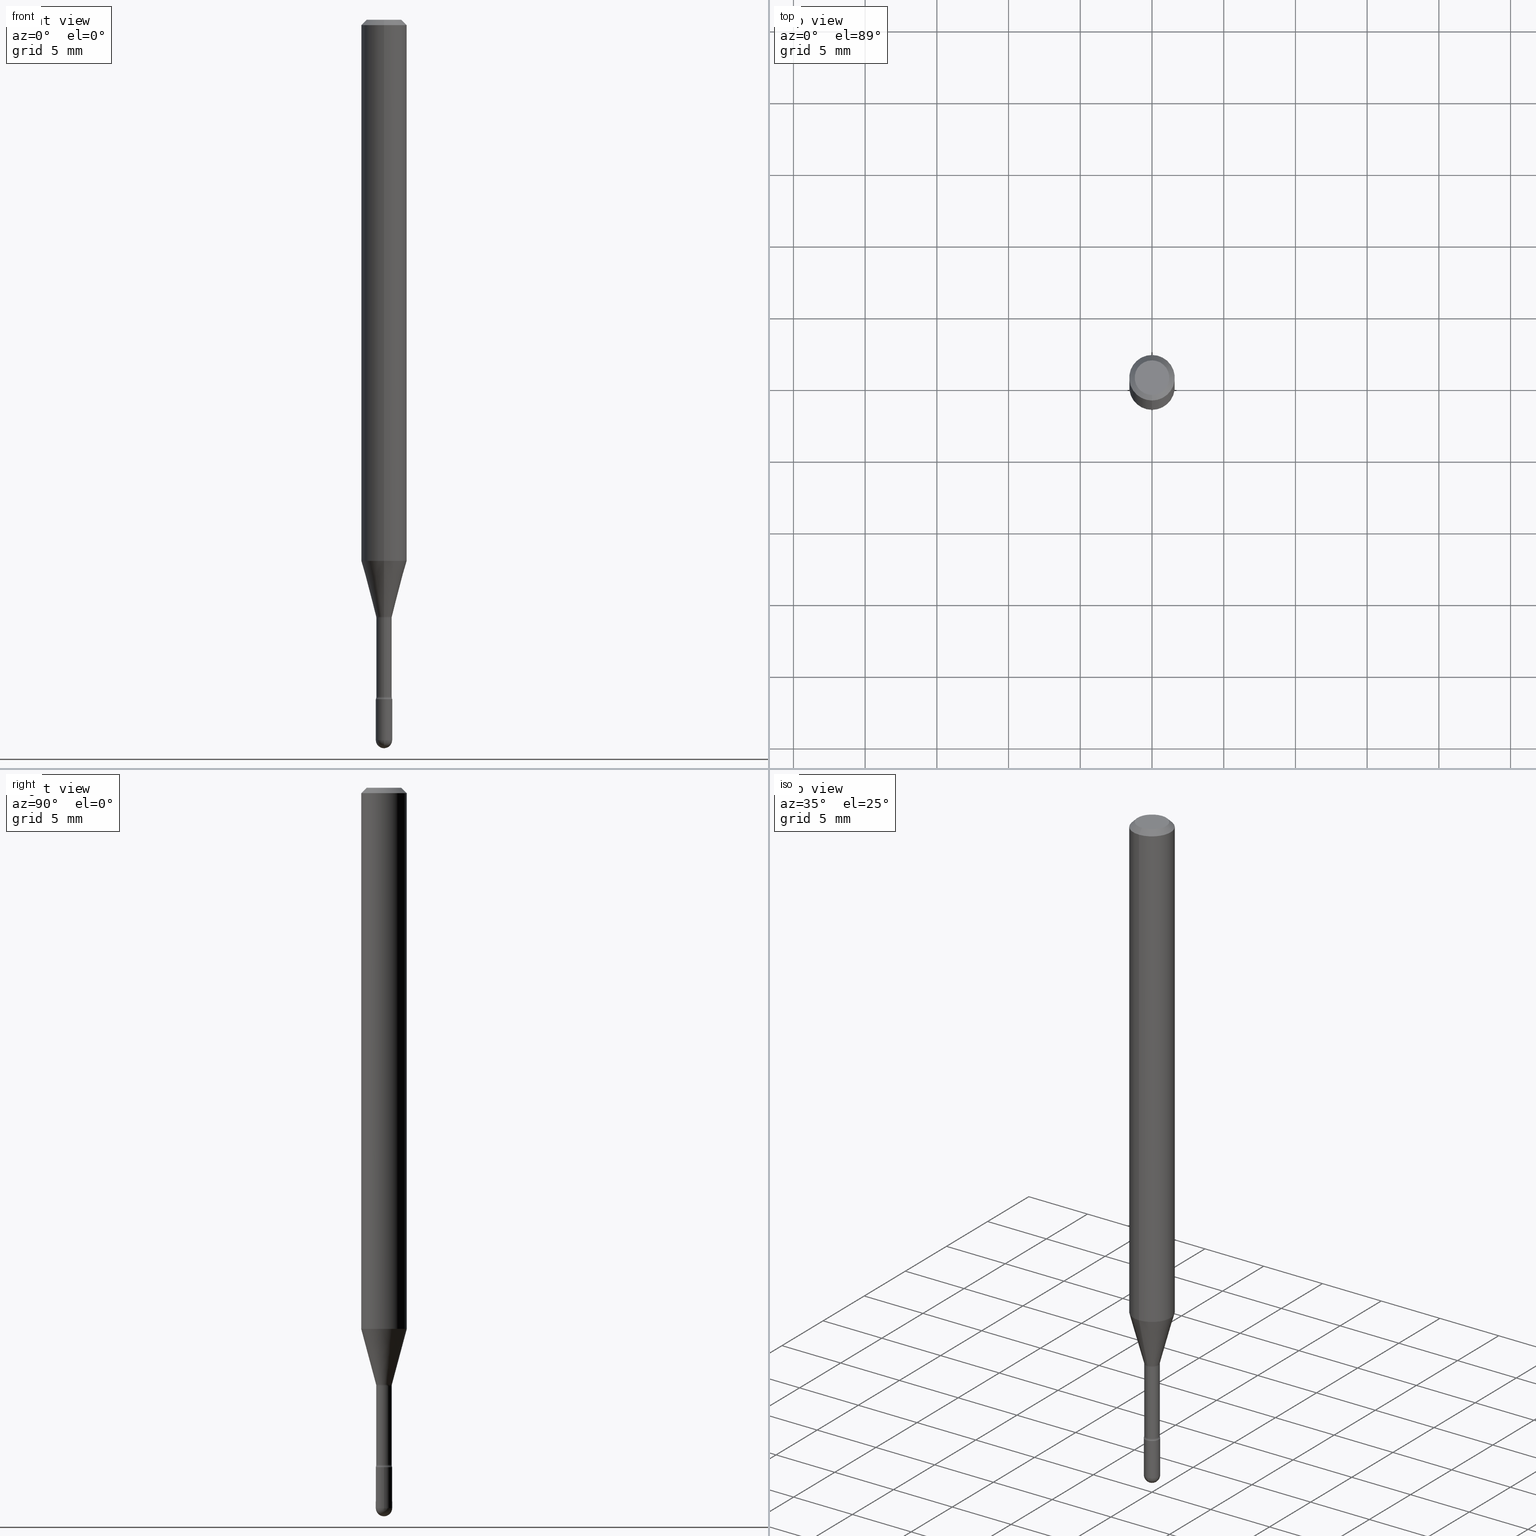
[diagram: canonical four-view strip — front | top / right | iso, engineering-drawing reading convention]
A machine part, canonical four-view strip (front | top / right | iso — engineering-drawing reading convention). The complete STEP part file that produces these views, byte-faithful:
ISO-10303-21;
HEADER;
FILE_DESCRIPTION (( 'STEP AP203' ),
    '1' );
FILE_NAME ('04546.STEP',
    '2024-04-09T21:48:30',
    ( '' ),
    ( '' ),
    'SwSTEP 2.0',
    'SolidWorks 2023',
    '' );
FILE_SCHEMA (( 'CONFIG_CONTROL_DESIGN' ));
ENDSEC;

DATA;
#1 = EDGE_CURVE ( 'NONE', #250, #234, #373, .T. ) ;
#2 = PERSON_AND_ORGANIZATION_ROLE ( 'classification_officer' ) ;
#3 = ORIENTED_EDGE ( 'NONE', *, *, #483, .F. ) ;
#4 = ORIENTED_EDGE ( 'NONE', *, *, #302, .F. ) ;
#5 = AXIS2_PLACEMENT_3D ( 'NONE', #416, #22, #192 ) ;
#6 = DIRECTION ( 'NONE',  ( -2.445440132867117626E-29, 3.491522400666532586E-15, 1.000000000000000000 ) ) ;
#7 = ADVANCED_FACE ( 'NONE', ( #532 ), #151, .F. ) ;
#8 = EDGE_CURVE ( 'NONE', #200, #158, #526, .T. ) ;
#9 = VERTEX_POINT ( 'NONE', #175 ) ;
#10 = DIRECTION ( 'NONE',  ( -1.000000000000000000, 6.982962677686265922E-15, -4.883557194083112340E-29 ) ) ;
#11 = DIRECTION ( 'NONE',  ( 6.982962677686265922E-15, 1.000000000000000000, 0.000000000000000000 ) ) ;
#12 = CIRCLE ( 'NONE', #62, 0.02249999999999999917 ) ;
#13 = CIRCLE ( 'NONE', #298, 0.02250000000000005121 ) ;
#14 = DIRECTION ( 'NONE',  ( -6.982962677686265922E-15, -1.000000000000000000, 3.483106191921935554E-15 ) ) ;
#15 = ORIENTED_EDGE ( 'NONE', *, *, #201, .T. ) ;
#16 = CARTESIAN_POINT ( 'NONE',  ( 4.015351042419959195E-29, -5.732991751759567442E-15, -1.641974787463811314 ) ) ;
#17 = AXIS2_PLACEMENT_3D ( 'NONE', #16, #480, #225 ) ;
#18 = CIRCLE ( 'NONE', #189, 0.02114999999999999172 ) ;
#19 = VERTEX_POINT ( 'NONE', #309 ) ;
#20 = CC_DESIGN_PERSON_AND_ORGANIZATION_ASSIGNMENT ( #319, #414, ( #281 ) ) ;
#21 = EDGE_LOOP ( 'NONE', ( #277, #61, #71, #522 ) ) ;
#22 = DIRECTION ( 'NONE',  ( -2.445440132867117346E-29, 3.491522400666532980E-15, 1.000000000000000000 ) ) ;
#23 = EDGE_LOOP ( 'NONE', ( #537, #4, #66, #435 ) ) ;
#24 = DIRECTION ( 'NONE',  ( -6.982962677686265922E-15, -1.000000000000000000, 3.491522400666532980E-15 ) ) ;
#25 = ORIENTED_EDGE ( 'NONE', *, *, #69, .F. ) ;
#26 = CIRCLE ( 'NONE', #196, 0.02249999999999999570 ) ;
#27 = AXIS2_PLACEMENT_3D ( 'NONE', #544, #148, #405 ) ;
#28 = FACE_OUTER_BOUND ( 'NONE', #82, .T. ) ;
#29 = EDGE_CURVE ( 'NONE', #131, #218, #127, .T. ) ;
#30 = LINE ( 'NONE', #464, #324 ) ;
#31 = PERSON_AND_ORGANIZATION ( #389, #397 ) ;
#32 = ORIENTED_EDGE ( 'NONE', *, *, #8, .T. ) ;
#33 = DIRECTION ( 'NONE',  ( 1.000000000000000000, -6.982962677686269866E-15, 0.000000000000000000 ) ) ;
#34 = DIMENSIONAL_EXPONENTS ( 1.000000000000000000, 0.000000000000000000, 0.000000000000000000, 0.000000000000000000, 0.000000000000000000, 0.000000000000000000, 0.000000000000000000 ) ;
#35 = APPROVAL_ROLE ( '' ) ;
#36 = ORIENTED_EDGE ( 'NONE', *, *, #223, .T. ) ;
#37 = CARTESIAN_POINT ( 'NONE',  ( 0.02249999999999999570, -6.865125182500334547E-15, -1.977499999999999813 ) ) ;
#38 = DATE_TIME_ROLE ( 'classification_date' ) ;
#39 = EDGE_LOOP ( 'NONE', ( #211, #168, #157, #501, #64 ) ) ;
#40 = AXIS2_PLACEMENT_3D ( 'NONE', #313, #396, #482 ) ;
#41 = AXIS2_PLACEMENT_3D ( 'NONE', #96, #147, #229 ) ;
#42 = CARTESIAN_POINT ( 'NONE',  ( 4.835914564231107217E-29, -6.904404347562320349E-15, -1.977499999999999813 ) ) ;
#43 = DATE_AND_TIME ( #344, #307 ) ;
#44 = ORIENTED_EDGE ( 'NONE', *, *, #129, .T. ) ;
#45 = ADVANCED_FACE ( 'NONE', ( #136 ), #449, .T. ) ;
#46 = ORIENTED_EDGE ( 'NONE', *, *, #420, .F. ) ;
#47 = EDGE_CURVE ( 'NONE', #216, #114, #304, .T. ) ;
#48 = DIRECTION ( 'NONE',  ( -6.982962677686265922E-15, -1.000000000000000000, 3.491522400666532980E-15 ) ) ;
#49 = CARTESIAN_POINT ( 'NONE',  ( 4.835914564231107217E-29, -6.904404347562320349E-15, -1.977499999999999813 ) ) ;
#50 = CIRCLE ( 'NONE', #437, 0.02166111260566391111 ) ;
#51 = CARTESIAN_POINT ( 'NONE',  ( -1.476896606330192412E-16, -0.02115000000000651428, -1.858780876267511539 ) ) ;
#52 = ORIENTED_EDGE ( 'NONE', *, *, #204, .T. ) ;
#53 = DIRECTION ( 'NONE',  ( -1.000000000000000000, 6.982962677686265922E-15, -4.883557194083111780E-29 ) ) ;
#54 = DIRECTION ( 'NONE',  ( -2.445440132867117346E-29, 3.491522400666532980E-15, 1.000000000000000000 ) ) ;
#55 = AXIS2_PLACEMENT_3D ( 'NONE', #60, #104, #408 ) ;
#56 = AXIS2_PLACEMENT_3D ( 'NONE', #455, #566, #341 ) ;
#57 = APPROVAL ( #100, 'UNSPECIFIED' ) ;
#58 = LINE ( 'NONE', #404, #438 ) ;
#59 = APPLICATION_PROTOCOL_DEFINITION ( 'international standard', 'config_control_design', 1994, #400 ) ;
#60 = CARTESIAN_POINT ( 'NONE',  ( 3.633140760782267063E-29, -5.187283949647700469E-15, -1.485679699107027130 ) ) ;
#61 = ORIENTED_EDGE ( 'NONE', *, *, #294, .T. ) ;
#62 = AXIS2_PLACEMENT_3D ( 'NONE', #288, #380, #329 ) ;
#63 = CONICAL_SURFACE ( 'NONE', #255, 0.06250000000000000000, 0.7853981633974483900 ) ;
#64 = ORIENTED_EDGE ( 'NONE', *, *, #494, .F. ) ;
#65 = CYLINDRICAL_SURFACE ( 'NONE', #5, 0.02115000000000000907 ) ;
#66 = ORIENTED_EDGE ( 'NONE', *, *, #394, .T. ) ;
#67 = CYLINDRICAL_SURFACE ( 'NONE', #128, 0.02249999999999999917 ) ;
#68 = ORIENTED_EDGE ( 'NONE', *, *, #219, .F. ) ;
#69 = EDGE_CURVE ( 'NONE', #114, #565, #471, .T. ) ;
#70 = FACE_OUTER_BOUND ( 'NONE', #23, .T. ) ;
#71 = ORIENTED_EDGE ( 'NONE', *, *, #327, .T. ) ;
#72 = AXIS2_PLACEMENT_3D ( 'NONE', #310, #479, #160 ) ;
#73 = DIRECTION ( 'NONE',  ( -2.445468806185136597E-29, 3.491481338843145583E-15, 1.000000000000000000 ) ) ;
#74 = DIRECTION ( 'NONE',  ( 7.105427357601001859E-15, 1.000000000000000000, 0.000000000000000000 ) ) ;
#75 = ORIENTED_EDGE ( 'NONE', *, *, #303, .F. ) ;
#76 = DIRECTION ( 'NONE',  ( -1.000000000000000000, 7.105427357601001070E-15, -4.926315508542082329E-29 ) ) ;
#77 = DIRECTION ( 'NONE',  ( -6.982962677686265922E-15, -1.000000000000000000, 3.491522400666532980E-15 ) ) ;
#78 = EDGE_LOOP ( 'NONE', ( #497, #432, #297, #454 ) ) ;
#79 = DIRECTION ( 'NONE',  ( 1.000000000000000000, -6.982962677686265922E-15, 4.883557194083112340E-29 ) ) ;
#80 = DIRECTION ( 'NONE',  ( -2.445440132867117626E-29, 3.491522400666532586E-15, 1.000000000000000000 ) ) ;
#81 = ADVANCED_FACE ( 'NONE', ( #358 ), #529, .T. ) ;
#82 = EDGE_LOOP ( 'NONE', ( #46, #393 ) ) ;
#83 = TOROIDAL_SURFACE ( 'NONE', #242, 0.03614999999999999464, 0.01500000000000001679 ) ;
#84 = TOROIDAL_SURFACE ( 'NONE', #41, 0.03615000000000002239, 0.01499999999999999424 ) ;
#85 = DIRECTION ( 'NONE',  ( -2.445440132867117346E-29, 3.491522400666532980E-15, 1.000000000000000000 ) ) ;
#86 = PERSON_AND_ORGANIZATION_ROLE ( 'creator' ) ;
#87 = VERTEX_POINT ( 'NONE', #360 ) ;
#88 = VERTEX_POINT ( 'NONE', #367 ) ;
#89 = EDGE_CURVE ( 'NONE', #378, #9, #171, .T. ) ;
#90 =( NAMED_UNIT ( * ) PLANE_ANGLE_UNIT ( ) SI_UNIT ( $, .RADIAN. ) );
#91 = AXIS2_PLACEMENT_3D ( 'NONE', #93, #54, #14 ) ;
#92 = AXIS2_PLACEMENT_3D ( 'NONE', #511, #376, #421 ) ;
#93 = CARTESIAN_POINT ( 'NONE',  ( 3.668160199300696128E-31, -5.237283600999828510E-17, -0.01500000000000008271 ) ) ;
#94 = DIRECTION ( 'NONE',  ( -6.982962677686265922E-15, -1.000000000000000000, 0.000000000000000000 ) ) ;
#95 = CARTESIAN_POINT ( 'NONE',  ( 4.560799323535279574E-29, -6.511612696942466269E-15, -1.864999999999999991 ) ) ;
#96 = CARTESIAN_POINT ( 'NONE',  ( 4.545590650445673704E-29, -6.489898742486526882E-15, -1.858780876267511539 ) ) ;
#97 = CARTESIAN_POINT ( 'NONE',  ( -4.364351673553912750E-16, -0.06250000000000005551, -0.01499999999999986587 ) ) ;
#98 = TOROIDAL_SURFACE ( 'NONE', #220, 0.03614999999999999464, 0.01500000000000001679 ) ;
#99 = CARTESIAN_POINT ( 'NONE',  ( -0.02249999999999999570, -6.548136406706371414E-15, -1.977499999999999813 ) ) ;
#100 = APPROVAL_STATUS ( 'not_yet_approved' ) ;
#101 = EDGE_CURVE ( 'NONE', #216, #244, #314, .T. ) ;
#102 = EDGE_LOOP ( 'NONE', ( #205, #36, #248, #162 ) ) ;
#103 = DIRECTION ( 'NONE',  ( -2.445440132867117346E-29, 3.491522400666532980E-15, 1.000000000000000000 ) ) ;
#104 = DIRECTION ( 'NONE',  ( -2.445440132867117346E-29, 3.491522400666532980E-15, 1.000000000000000000 ) ) ;
#105 = AXIS2_PLACEMENT_3D ( 'NONE', #95, #266, #180 ) ;
#106 = AXIS2_PLACEMENT_3D ( 'NONE', #194, #291, #245 ) ;
#107 = DIRECTION ( 'NONE',  ( -2.445440132867117346E-29, 3.491522400666532586E-15, 1.000000000000000000 ) ) ;
#108 = DIRECTION ( 'NONE',  ( 2.445440132867117346E-29, -3.491522400666532586E-15, -1.000000000000000000 ) ) ;
#109 = DIRECTION ( 'NONE',  ( -4.851104656540964275E-15, -0.7071067811865500152, -0.7071067811865450192 ) ) ;
#110 = EDGE_LOOP ( 'NONE', ( #555, #428, #300, #448 ) ) ;
#111 = DIRECTION ( 'NONE',  ( -7.105427357600999492E-15, -1.000000000000000000, 0.000000000000000000 ) ) ;
#112 = DIRECTION ( 'NONE',  ( -2.445468806185136877E-29, 3.491481338843145188E-15, 1.000000000000000000 ) ) ;
#113 = PERSON_AND_ORGANIZATION ( #389, #397 ) ;
#114 = VERTEX_POINT ( 'NONE', #97 ) ;
#115 = AXIS2_PLACEMENT_3D ( 'NONE', #164, #425, #74 ) ;
#116 = CIRCLE ( 'NONE', #56, 0.02249999999999999917 ) ;
#117 = CARTESIAN_POINT ( 'NONE',  ( 4.005857145219299164E-29, -5.719436664354149632E-15, -1.638092501787273614 ) ) ;
#118 = LINE ( 'NONE', #207, #458 ) ;
#119 = VERTEX_POINT ( 'NONE', #271 ) ;
#120 = DIRECTION ( 'NONE',  ( -6.982962677686265922E-15, -1.000000000000000000, 0.000000000000000000 ) ) ;
#121 = EDGE_CURVE ( 'NONE', #244, #216, #209, .T. ) ;
#122 = CARTESIAN_POINT ( 'NONE',  ( -4.364351673553553818E-16, -0.06250000000000520417, -1.485679699107026686 ) ) ;
#123 = VERTEX_POINT ( 'NONE', #183 ) ;
#124 = DIRECTION ( 'NONE',  ( -2.445440132867117346E-29, 3.491522400666532980E-15, 1.000000000000000000 ) ) ;
#125 = CALENDAR_DATE ( 2024, 9, 4 ) ;
#126 = ORIENTED_EDGE ( 'NONE', *, *, #201, .F. ) ;
#127 = CIRCLE ( 'NONE', #105, 0.02249999999999999917 ) ;
#128 = AXIS2_PLACEMENT_3D ( 'NONE', #551, #73, #560 ) ;
#129 = EDGE_CURVE ( 'NONE', #369, #218, #363, .T. ) ;
#130 = PERSON_AND_ORGANIZATION_ROLE ( 'design_supplier' ) ;
#131 = VERTEX_POINT ( 'NONE', #430 ) ;
#132 = FACE_OUTER_BOUND ( 'NONE', #340, .T. ) ;
#133 = CLOSED_SHELL ( 'NONE', ( #490, #264, #81, #241, #361 ) ) ;
#134 = CC_DESIGN_APPROVAL ( #184, ( #285 ) ) ;
#135 = ADVANCED_FACE ( 'NONE', ( #384 ), #336, .T. ) ;
#136 = FACE_OUTER_BOUND ( 'NONE', #21, .T. ) ;
#137 = CARTESIAN_POINT ( 'NONE',  ( 4.560745847797173249E-29, -6.511689277243084217E-15, -1.864999999999999991 ) ) ;
#138 = DIRECTION ( 'NONE',  ( -2.445440132867117346E-29, 3.491522400666532980E-15, 1.000000000000000000 ) ) ;
#139 = ADVANCED_FACE ( 'NONE', ( #247 ), #166, .T. ) ;
#140 = MANIFOLD_SOLID_BREP ( 'Body-Move/Copy2[2]', #267 ) ;
#141 = EDGE_CURVE ( 'NONE', #19, #423, #492, .T. ) ;
#142 = PERSON_AND_ORGANIZATION ( #389, #397 ) ;
#143 = EDGE_CURVE ( 'NONE', #123, #119, #403, .T. ) ;
#144 = PRODUCT_DEFINITION_SHAPE ( 'NONE', 'NONE',  #281 ) ;
#145 = DATE_AND_TIME ( #368, #431 ) ;
#146 = EDGE_LOOP ( 'NONE', ( #231, #153, #25, #415 ) ) ;
#147 = DIRECTION ( 'NONE',  ( -2.445440132867117346E-29, 3.491522400666532980E-15, 1.000000000000000000 ) ) ;
#148 = DIRECTION ( 'NONE',  ( 0.000000000000000000, 0.000000000000000000, 1.000000000000000000 ) ) ;
#149 = ORIENTED_EDGE ( 'NONE', *, *, #353, .T. ) ;
#150 = LINE ( 'NONE', #366, #375 ) ;
#151 = TOROIDAL_SURFACE ( 'NONE', #412, 0.03615000000000002239, 0.01499999999999999424 ) ;
#152 =( GEOMETRIC_REPRESENTATION_CONTEXT ( 3 ) GLOBAL_UNCERTAINTY_ASSIGNED_CONTEXT ( ( #354 ) ) GLOBAL_UNIT_ASSIGNED_CONTEXT ( ( #352, #90, #179 ) ) REPRESENTATION_CONTEXT ( 'NONE', 'WORKASPACE' ) );
#153 = ORIENTED_EDGE ( 'NONE', *, *, #193, .T. ) ;
#154 = FACE_OUTER_BOUND ( 'NONE', #426, .T. ) ;
#155 = DIRECTION ( 'NONE',  ( -2.445440132867117626E-29, 3.491522400666532586E-15, 1.000000000000000000 ) ) ;
#156 = CC_DESIGN_DATE_AND_TIME_ASSIGNMENT ( #43, #169, ( #281 ) ) ;
#157 = ORIENTED_EDGE ( 'NONE', *, *, #427, .T. ) ;
#158 = VERTEX_POINT ( 'NONE', #342 ) ;
#159 = DIRECTION ( 'NONE',  ( -2.445468806185136597E-29, 3.491481338843145583E-15, 1.000000000000000000 ) ) ;
#160 = DIRECTION ( 'NONE',  ( 1.000000000000000000, -6.982962677686265922E-15, 4.876176775795935793E-29 ) ) ;
#161 = AXIS2_PLACEMENT_3D ( 'NONE', #283, #557, #333 ) ;
#162 = ORIENTED_EDGE ( 'NONE', *, *, #394, .F. ) ;
#163 = DIRECTION ( 'NONE',  ( 6.982962677686265922E-15, 1.000000000000000000, -3.483106191921935554E-15 ) ) ;
#164 = CARTESIAN_POINT ( 'NONE',  ( 2.568611989773217851E-16, 0.03614999999999353453, -1.858780876267511539 ) ) ;
#165 = ORIENTED_EDGE ( 'NONE', *, *, #502, .T. ) ;
#166 = CYLINDRICAL_SURFACE ( 'NONE', #176, 0.06250000000000000000 ) ;
#167 = EDGE_CURVE ( 'NONE', #378, #123, #561, .T. ) ;
#168 = ORIENTED_EDGE ( 'NONE', *, *, #174, .T. ) ;
#169 = DATE_TIME_ROLE ( 'creation_date' ) ;
#170 = EDGE_LOOP ( 'NONE', ( #382, #433, #149, #371 ) ) ;
#171 = CIRCLE ( 'NONE', #337, 0.01500000000000001506 ) ;
#172 = CC_DESIGN_APPROVAL ( #57, ( #281 ) ) ;
#173 = DIRECTION ( 'NONE',  ( 1.000000000000000000, -6.982962677686269866E-15, 0.000000000000000000 ) ) ;
#174 = EDGE_CURVE ( 'NONE', #369, #87, #365, .T. ) ;
#175 = CARTESIAN_POINT ( 'NONE',  ( -1.476896606330243195E-16, -0.02115000000000572325, -1.641974787463811314 ) ) ;
#176 = AXIS2_PLACEMENT_3D ( 'NONE', #508, #548, #77 ) ;
#177 = DIRECTION ( 'NONE',  ( -2.445440132867117346E-29, 3.491522400666532980E-15, 1.000000000000000000 ) ) ;
#178 = VECTOR ( 'NONE', #185, 39.37007874015748854 ) ;
#179 =( NAMED_UNIT ( * ) SI_UNIT ( $, .STERADIAN. ) SOLID_ANGLE_UNIT ( ) );
#180 = DIRECTION ( 'NONE',  ( 1.000000000000000000, -6.982962677686269077E-15, 0.000000000000000000 ) ) ;
#181 = CARTESIAN_POINT ( 'NONE',  ( 3.668160199300696128E-31, -5.237283600999828510E-17, -0.01500000000000008271 ) ) ;
#182 = PERSON_AND_ORGANIZATION ( #389, #397 ) ;
#183 = CARTESIAN_POINT ( 'NONE',  ( 2.990003359772496319E-16, 0.02166111260565818999, -1.638092501787273614 ) ) ;
#184 = APPROVAL ( #217, 'UNSPECIFIED' ) ;
#185 = DIRECTION ( 'NONE',  ( -1.807323732225322645E-15, -0.2588190451025171313, 0.9659258262890693114 ) ) ;
#186 = AXIS2_PLACEMENT_3D ( 'NONE', #265, #177, #357 ) ;
#187 = COORDINATED_UNIVERSAL_TIME_OFFSET ( 5, 0, .BEHIND. ) ;
#188 = CIRCLE ( 'NONE', #186, 0.04749999999999999362 ) ;
#189 = AXIS2_PLACEMENT_3D ( 'NONE', #540, #103, #370 ) ;
#190 = ORIENTED_EDGE ( 'NONE', *, *, #302, .T. ) ;
#191 = CARTESIAN_POINT ( 'NONE',  ( 3.840629472727447874E-16, 0.04749999999999999362, -2.485923956665947374E-16 ) ) ;
#192 = DIRECTION ( 'NONE',  ( -6.982962677686266711E-15, -1.000000000000000000, 3.491522400666531008E-15 ) ) ;
#193 = EDGE_CURVE ( 'NONE', #244, #565, #118, .T. ) ;
#194 = CARTESIAN_POINT ( 'NONE',  ( 4.545537353030480004E-29, -6.489975067418584328E-15, -1.858780876267511539 ) ) ;
#195 = CARTESIAN_POINT ( 'NONE',  ( -1.571166602478953358E-16, -0.02250000000000650438, -1.864999999999999991 ) ) ;
#196 = AXIS2_PLACEMENT_3D ( 'NONE', #42, #214, #390 ) ;
#197 = AXIS2_PLACEMENT_3D ( 'NONE', #198, #278, #418 ) ;
#198 = CARTESIAN_POINT ( 'NONE',  ( 2.023344354768314881E-45, -2.889259366388260326E-31, -8.274508163493441542E-17 ) ) ;
#199 = CYLINDRICAL_SURFACE ( 'NONE', #385, 0.02115000000000000907 ) ;
#200 = VERTEX_POINT ( 'NONE', #37 ) ;
#201 = EDGE_CURVE ( 'NONE', #250, #9, #256, .T. ) ;
#202 = CARTESIAN_POINT ( 'NONE',  ( 4.440892098500991996E-16, 0.06249999999999995143, -0.01500000000000030129 ) ) ;
#203 = CARTESIAN_POINT ( 'NONE',  ( 4.005857145219299164E-29, -5.719436664354149632E-15, -1.638092501787273614 ) ) ;
#204 = EDGE_CURVE ( 'NONE', #423, #234, #12, .T. ) ;
#205 = ORIENTED_EDGE ( 'NONE', *, *, #541, .F. ) ;
#206 = DIRECTION ( 'NONE',  ( -2.445468806185136597E-29, 3.491481338843145583E-15, 1.000000000000000000 ) ) ;
#207 = CARTESIAN_POINT ( 'NONE',  ( 4.440892098500625669E-16, 0.06250000000000000000, 2.598532488495877520E-16 ) ) ;
#208 = DESIGN_CONTEXT ( 'detailed design', #400, 'design' ) ;
#209 = CIRCLE ( 'NONE', #476, 0.06250000000000000000 ) ;
#210 = COORDINATED_UNIVERSAL_TIME_OFFSET ( 5, 0, .BEHIND. ) ;
#211 = ORIENTED_EDGE ( 'NONE', *, *, #129, .F. ) ;
#212 = AXIS2_PLACEMENT_3D ( 'NONE', #543, #274, #447 ) ;
#213 = CC_DESIGN_SECURITY_CLASSIFICATION ( #285, ( #485 ) ) ;
#214 = DIRECTION ( 'NONE',  ( -2.445468806185136597E-29, 3.491481338843145583E-15, 1.000000000000000000 ) ) ;
#215 = COORDINATED_UNIVERSAL_TIME_OFFSET ( 5, 0, .BEHIND. ) ;
#216 = VERTEX_POINT ( 'NONE', #122 ) ;
#217 = APPROVAL_STATUS ( 'not_yet_approved' ) ;
#218 = VERTEX_POINT ( 'NONE', #422 ) ;
#219 = EDGE_CURVE ( 'NONE', #200, #131, #30, .T. ) ;
#220 = AXIS2_PLACEMENT_3D ( 'NONE', #514, #374, #470 ) ;
#221 = CC_DESIGN_APPROVAL ( #463, ( #485 ) ) ;
#222 = FACE_OUTER_BOUND ( 'NONE', #110, .T. ) ;
#223 = EDGE_CURVE ( 'NONE', #88, #114, #512, .T. ) ;
#224 = VECTOR ( 'NONE', #112, 39.37007874015748143 ) ;
#225 = DIRECTION ( 'NONE',  ( -6.982962677686266711E-15, -1.000000000000000000, 0.000000000000000000 ) ) ;
#226 = CIRCLE ( 'NONE', #276, 0.06250000000000000000 ) ;
#227 = CARTESIAN_POINT ( 'NONE',  ( -2.524341007983131777E-16, -0.03615000000000651026, -1.858780876267511539 ) ) ;
#228 = CC_DESIGN_DATE_AND_TIME_ASSIGNMENT ( #554, #38, ( #285 ) ) ;
#229 = DIRECTION ( 'NONE',  ( -6.982962677686265922E-15, -1.000000000000000000, 3.491522400666532980E-15 ) ) ;
#230 = EDGE_CURVE ( 'NONE', #158, #369, #26, .T. ) ;
#231 = ORIENTED_EDGE ( 'NONE', *, *, #101, .T. ) ;
#232 = CYLINDRICAL_SURFACE ( 'NONE', #338, 0.02249999999999999917 ) ;
#233 = AXIS2_PLACEMENT_3D ( 'NONE', #499, #124, #24 ) ;
#234 = VERTEX_POINT ( 'NONE', #195 ) ;
#235 = ADVANCED_FACE ( 'NONE', ( #347 ), #98, .F. ) ;
#236 = DIRECTION ( 'NONE',  ( 1.000000000000000000, -6.982962677686266711E-15, 4.876176775795935793E-29 ) ) ;
#237 = ADVANCED_FACE ( 'NONE', ( #280 ), #199, .T. ) ;
#238 = ORIENTED_EDGE ( 'NONE', *, *, #461, .T. ) ;
#239 = CARTESIAN_POINT ( 'NONE',  ( 4.835914564231107217E-29, -6.904404347562320349E-15, -1.977499999999999813 ) ) ;
#240 = DIRECTION ( 'NONE',  ( -2.445440132867117346E-29, 3.491522400666532980E-15, 1.000000000000000000 ) ) ;
#241 = ADVANCED_FACE ( 'NONE', ( #552 ), #301, .T. ) ;
#242 = AXIS2_PLACEMENT_3D ( 'NONE', #517, #478, #299 ) ;
#243 = APPROVAL_PERSON_ORGANIZATION ( #564, #463, #35 ) ;
#244 = VERTEX_POINT ( 'NONE', #377 ) ;
#245 = DIRECTION ( 'NONE',  ( -6.982962677686266711E-15, -1.000000000000000000, 0.000000000000000000 ) ) ;
#246 = CC_DESIGN_PERSON_AND_ORGANIZATION_ASSIGNMENT ( #113, #130, ( #485 ) ) ;
#247 = FACE_OUTER_BOUND ( 'NONE', #146, .T. ) ;
#248 = ORIENTED_EDGE ( 'NONE', *, *, #69, .T. ) ;
#249 = DIRECTION ( 'NONE',  ( -2.445468806185136877E-29, 3.491481338843145188E-15, 1.000000000000000000 ) ) ;
#250 = VERTEX_POINT ( 'NONE', #51 ) ;
#251 = FACE_OUTER_BOUND ( 'NONE', #257, .T. ) ;
#252 = CARTESIAN_POINT ( 'NONE',  ( -0.02249999999999999917, 1.598721155460225359E-16, -1.106760395307353780E-30 ) ) ;
#253 = VECTOR ( 'NONE', #80, 39.37007874015748143 ) ;
#254 = ORIENTED_EDGE ( 'NONE', *, *, #89, .T. ) ;
#255 = AXIS2_PLACEMENT_3D ( 'NONE', #556, #424, #163 ) ;
#256 = LINE ( 'NONE', #563, #253 ) ;
#257 = EDGE_LOOP ( 'NONE', ( #474, #273, #364, #457 ) ) ;
#258 = ADVANCED_FACE ( 'NONE', ( #132 ), #83, .F. ) ;
#259 = LENGTH_MEASURE_WITH_UNIT ( LENGTH_MEASURE( 0.02539999999999999897 ), #379 );
#260 = DIRECTION ( 'NONE',  ( 6.982962677686265922E-15, 1.000000000000000000, 0.000000000000000000 ) ) ;
#261 = VERTEX_POINT ( 'NONE', #523 ) ;
#262 = AXIS2_PLACEMENT_3D ( 'NONE', #239, #79, #467 ) ;
#263 = APPROVAL_PERSON_ORGANIZATION ( #142, #57, #410 ) ;
#264 = ADVANCED_FACE ( 'NONE', ( #222 ), #525, .T. ) ;
#265 = CARTESIAN_POINT ( 'NONE',  ( 2.023344354768314881E-45, -2.889259366388260326E-31, -8.274508163493441542E-17 ) ) ;
#266 = DIRECTION ( 'NONE',  ( -2.445468806185136597E-29, 3.491481338843145583E-15, 1.000000000000000000 ) ) ;
#267 = CLOSED_SHELL ( 'NONE', ( #235, #237, #321, #343, #139, #453, #45, #135, #475, #550, #519, #7, #411, #258 ) ) ;
#268 = DIRECTION ( 'NONE',  ( -2.445440132867117346E-29, 3.491522400666532980E-15, 1.000000000000000000 ) ) ;
#269 = CIRCLE ( 'NONE', #356, 0.02249999999999999570 ) ;
#270 = PERSON_AND_ORGANIZATION_ROLE ( 'design_owner' ) ;
#271 = CARTESIAN_POINT ( 'NONE',  ( 1.502797886133066626E-16, 0.02114999999999426020, -1.641974787463811314 ) ) ;
#272 = PRODUCT ( '04546', '04546', '', ( #445 ) ) ;
#273 = ORIENTED_EDGE ( 'NONE', *, *, #351, .T. ) ;
#274 = DIRECTION ( 'NONE',  ( 2.445440132867117346E-29, -3.491522400666532980E-15, -1.000000000000000000 ) ) ;
#275 = DIRECTION ( 'NONE',  ( -2.445440132867117346E-29, 3.491522400666532980E-15, 1.000000000000000000 ) ) ;
#276 = AXIS2_PLACEMENT_3D ( 'NONE', #181, #530, #359 ) ;
#277 = ORIENTED_EDGE ( 'NONE', *, *, #351, .F. ) ;
#278 = DIRECTION ( 'NONE',  ( -2.445440132867117346E-29, 3.491522400666532980E-15, 1.000000000000000000 ) ) ;
#279 = CARTESIAN_POINT ( 'NONE',  ( 1.598721155460680926E-16, 0.02249999999999348008, -1.864999999999999991 ) ) ;
#280 = FACE_OUTER_BOUND ( 'NONE', #559, .T. ) ;
#281 = PRODUCT_DEFINITION ( 'UNKNOWN', '', #485, #208 ) ;
#282 = DIRECTION ( 'NONE',  ( 6.982962677686265922E-15, 1.000000000000000000, -3.491522400666532586E-15 ) ) ;
#283 = CARTESIAN_POINT ( 'NONE',  ( 2.568611989773163124E-16, 0.03614999999999426311, -1.641974787463811314 ) ) ;
#284 = AXIS2_PLACEMENT_3D ( 'NONE', #308, #53, #11 ) ;
#285 = SECURITY_CLASSIFICATION ( '', '', #558 ) ;
#286 = PERSON_AND_ORGANIZATION ( #389, #397 ) ;
#287 = ORIENTED_EDGE ( 'NONE', *, *, #141, .T. ) ;
#288 = CARTESIAN_POINT ( 'NONE',  ( 4.560745847797173249E-29, -6.511689277243084217E-15, -1.864999999999999991 ) ) ;
#289 = CALENDAR_DATE ( 2024, 9, 4 ) ;
#290 = ORIENTED_EDGE ( 'NONE', *, *, #312, .F. ) ;
#291 = DIRECTION ( 'NONE',  ( -2.445440132867117346E-29, 3.491522400666532980E-15, 1.000000000000000000 ) ) ;
#292 = CARTESIAN_POINT ( 'NONE',  ( -4.287811248607203282E-16, -0.06250000000000005551, -0.01499999999999986587 ) ) ;
#293 = ORIENTED_EDGE ( 'NONE', *, *, #541, .T. ) ;
#294 = EDGE_CURVE ( 'NONE', #123, #378, #50, .T. ) ;
#295 = CARTESIAN_POINT ( 'NONE',  ( -1.169113584055446105E-44, 1.669184350826100908E-30, 4.780733988912460139E-16 ) ) ;
#296 = DATE_AND_TIME ( #125, #386 ) ;
#297 = ORIENTED_EDGE ( 'NONE', *, *, #1, .T. ) ;
#298 = AXIS2_PLACEMENT_3D ( 'NONE', #328, #76, #111 ) ;
#299 = DIRECTION ( 'NONE',  ( -6.982962677686265922E-15, -1.000000000000000000, 3.491522400666532980E-15 ) ) ;
#300 = ORIENTED_EDGE ( 'NONE', *, *, #174, .F. ) ;
#301 = SPHERICAL_SURFACE ( 'NONE', #484, 0.02250000000000005121 ) ;
#302 = EDGE_CURVE ( 'NONE', #401, #88, #188, .T. ) ;
#303 = EDGE_CURVE ( 'NONE', #9, #119, #504, .T. ) ;
#304 = LINE ( 'NONE', #440, #536 ) ;
#305 = AXIS2_PLACEMENT_3D ( 'NONE', #203, #240, #468 ) ;
#306 = ADVANCED_BREP_SHAPE_REPRESENTATION ( '04546', ( #507, #140, #27 ), #152 ) ;
#307 = LOCAL_TIME ( 17, 48, 30.00000000000000000, #496 ) ;
#308 = CARTESIAN_POINT ( 'NONE',  ( 4.835914564231107217E-29, -6.904404347562320349E-15, -1.977499999999999813 ) ) ;
#309 = CARTESIAN_POINT ( 'NONE',  ( 1.550759520796874516E-16, 0.02114999999999353855, -1.858780876267511539 ) ) ;
#310 = CARTESIAN_POINT ( 'NONE',  ( 4.560799323535279574E-29, -6.511612696942466269E-15, -1.864999999999999991 ) ) ;
#311 = DIRECTION ( 'NONE',  ( -1.000000000000000000, 6.982962677686265922E-15, -4.883557194083112340E-29 ) ) ;
#312 = EDGE_CURVE ( 'NONE', #565, #114, #226, .T. ) ;
#313 = CARTESIAN_POINT ( 'NONE',  ( 4.005857145219299164E-29, -5.719436664354149632E-15, -1.638092501787273614 ) ) ;
#314 = CIRCLE ( 'NONE', #55, 0.06250000000000000000 ) ;
#315 = EDGE_CURVE ( 'NONE', #19, #119, #58, .T. ) ;
#316 = DIRECTION ( 'NONE',  ( 1.839019923739592821E-15, 0.2588190451025239036, 0.9659258262890675351 ) ) ;
#317 = LOCAL_TIME ( 17, 48, 30.00000000000000000, #215 ) ;
#318 = DIRECTION ( 'NONE',  ( 4.937700262164548042E-15, 0.7071067811865451302, -0.7071067811865499042 ) ) ;
#319 = PERSON_AND_ORGANIZATION ( #389, #397 ) ;
#320 = EDGE_LOOP ( 'NONE', ( #491, #513 ) ) ;
#321 = ADVANCED_FACE ( 'NONE', ( #362 ), #84, .F. ) ;
#322 = CARTESIAN_POINT ( 'NONE',  ( -1.512587408824705389E-16, -0.02166111260566962876, -1.638092501787273614 ) ) ;
#323 = LINE ( 'NONE', #451, #413 ) ;
#324 = VECTOR ( 'NONE', #249, 39.37007874015748143 ) ;
#325 = CIRCLE ( 'NONE', #262, 0.02250000000000005121 ) ;
#326 = ORIENTED_EDGE ( 'NONE', *, *, #143, .F. ) ;
#327 = EDGE_CURVE ( 'NONE', #378, #216, #409, .T. ) ;
#328 = CARTESIAN_POINT ( 'NONE',  ( 4.835914564231107217E-29, -6.904404347562320349E-15, -1.977499999999999813 ) ) ;
#329 = DIRECTION ( 'NONE',  ( -6.982962677686265133E-15, -1.000000000000000000, 0.000000000000000000 ) ) ;
#330 = CC_DESIGN_PERSON_AND_ORGANIZATION_ASSIGNMENT ( #182, #270, ( #272 ) ) ;
#331 = ORIENTED_EDGE ( 'NONE', *, *, #29, .F. ) ;
#332 = PLANE ( 'NONE',  #443 ) ;
#333 = DIRECTION ( 'NONE',  ( 7.105427357601001859E-15, 1.000000000000000000, 0.000000000000000000 ) ) ;
#334 = ORIENTED_EDGE ( 'NONE', *, *, #303, .T. ) ;
#335 = DIRECTION ( 'NONE',  ( 1.000000000000000000, -6.982962677686269866E-15, 0.000000000000000000 ) ) ;
#336 = CYLINDRICAL_SURFACE ( 'NONE', #233, 0.06250000000000000000 ) ;
#337 = AXIS2_PLACEMENT_3D ( 'NONE', #505, #311, #481 ) ;
#338 = AXIS2_PLACEMENT_3D ( 'NONE', #539, #533, #236 ) ;
#339 = APPROVAL_DATE_TIME ( #381, #463 ) ;
#340 = EDGE_LOOP ( 'NONE', ( #326, #488, #254, #334 ) ) ;
#341 = DIRECTION ( 'NONE',  ( 1.000000000000000000, -6.982962677686269077E-15, 0.000000000000000000 ) ) ;
#342 = CARTESIAN_POINT ( 'NONE',  ( 1.571166602479895061E-16, 0.02249999999999311925, -1.977499999999999813 ) ) ;
#343 = ADVANCED_FACE ( 'NONE', ( #489 ), #350, .T. ) ;
#344 = CALENDAR_DATE ( 2024, 9, 4 ) ;
#345 = EDGE_LOOP ( 'NONE', ( #549, #287, #52, #349 ) ) ;
#346 = PLANE ( 'NONE',  #460 ) ;
#347 = FACE_OUTER_BOUND ( 'NONE', #170, .T. ) ;
#348 = ORIENTED_EDGE ( 'NONE', *, *, #315, .T. ) ;
#349 = ORIENTED_EDGE ( 'NONE', *, *, #1, .F. ) ;
#350 = CONICAL_SURFACE ( 'NONE', #212, 0.06250000000000000000, 0.7853981633974483900 ) ;
#351 = EDGE_CURVE ( 'NONE', #123, #244, #150, .T. ) ;
#352 =( CONVERSION_BASED_UNIT ( 'INCH', #259 ) LENGTH_UNIT ( ) NAMED_UNIT ( #34 ) );
#353 = EDGE_CURVE ( 'NONE', #119, #9, #18, .T. ) ;
#354 = UNCERTAINTY_MEASURE_WITH_UNIT (LENGTH_MEASURE( 1.000000000000000082E-05 ), #352, 'distance_accuracy_value', 'NONE');
#355 = DIRECTION ( 'NONE',  ( -2.445440132867117346E-29, 3.491522400666532980E-15, 1.000000000000000000 ) ) ;
#356 = AXIS2_PLACEMENT_3D ( 'NONE', #547, #206, #335 ) ;
#357 = DIRECTION ( 'NONE',  ( -6.982962677686266711E-15, -1.000000000000000000, 3.491522400666533375E-15 ) ) ;
#358 = FACE_OUTER_BOUND ( 'NONE', #320, .T. ) ;
#359 = DIRECTION ( 'NONE',  ( -6.982962677686265922E-15, -1.000000000000000000, 3.483106191921935554E-15 ) ) ;
#360 = CARTESIAN_POINT ( 'NONE',  ( -1.598721155459743168E-16, -0.02250000000000693112, -1.977499999999999813 ) ) ;
#361 = ADVANCED_FACE ( 'NONE', ( #486 ), #232, .T. ) ;
#362 = FACE_OUTER_BOUND ( 'NONE', #345, .T. ) ;
#363 = LINE ( 'NONE', #252, #224 ) ;
#364 = ORIENTED_EDGE ( 'NONE', *, *, #101, .F. ) ;
#365 = CIRCLE ( 'NONE', #546, 0.02249999999999999570 ) ;
#366 = CARTESIAN_POINT ( 'NONE',  ( 1.539114621044003108E-16, 0.02166111260565818999, -1.638092501787273614 ) ) ;
#367 = CARTESIAN_POINT ( 'NONE',  ( -3.773273898774340269E-16, -0.04749999999999999362, 8.310223239672589423E-17 ) ) ;
#368 = CALENDAR_DATE ( 2024, 9, 4 ) ;
#369 = VERTEX_POINT ( 'NONE', #99 ) ;
#370 = DIRECTION ( 'NONE',  ( -6.982962677686266711E-15, -1.000000000000000000, 0.000000000000000000 ) ) ;
#371 = ORIENTED_EDGE ( 'NONE', *, *, #89, .F. ) ;
#372 = DIRECTION ( 'NONE',  ( -6.982962677686265922E-15, -1.000000000000000000, 3.491522400666532586E-15 ) ) ;
#373 = CIRCLE ( 'NONE', #436, 0.01499999999999999424 ) ;
#374 = DIRECTION ( 'NONE',  ( -2.445440132867117346E-29, 3.491522400666532980E-15, 1.000000000000000000 ) ) ;
#375 = VECTOR ( 'NONE', #316, 39.37007874015748854 ) ;
#376 = DIRECTION ( 'NONE',  ( -2.445440132867117346E-29, 3.491522400666532980E-15, 1.000000000000000000 ) ) ;
#377 = CARTESIAN_POINT ( 'NONE',  ( 4.440892098500987066E-16, 0.06249999999999478889, -1.485679699107027352 ) ) ;
#378 = VERTEX_POINT ( 'NONE', #322 ) ;
#379 =( LENGTH_UNIT ( ) NAMED_UNIT ( * ) SI_UNIT ( $, .METRE. ) );
#380 = DIRECTION ( 'NONE',  ( -2.445440132867117346E-29, 3.491522400666532980E-15, 1.000000000000000000 ) ) ;
#381 = DATE_AND_TIME ( #289, #317 ) ;
#382 = ORIENTED_EDGE ( 'NONE', *, *, #294, .F. ) ;
#383 = DIRECTION ( 'NONE',  ( -2.445440132867117346E-29, 3.491522400666532980E-15, 1.000000000000000000 ) ) ;
#384 = FACE_OUTER_BOUND ( 'NONE', #542, .T. ) ;
#385 = AXIS2_PLACEMENT_3D ( 'NONE', #295, #85, #456 ) ;
#386 = LOCAL_TIME ( 17, 48, 30.00000000000000000, #210 ) ;
#387 = ORIENTED_EDGE ( 'NONE', *, *, #315, .F. ) ;
#388 = FACE_OUTER_BOUND ( 'NONE', #469, .T. ) ;
#389 = PERSON ( 'UNSPECIFIED', 'UNSPECIFIED', 'UNSPECIFIED', ('UNSPECIFIED'), ('UNSPECIFIED'), ('UNSPECIFIED') ) ;
#390 = DIRECTION ( 'NONE',  ( 1.000000000000000000, -6.982962677686269866E-15, 0.000000000000000000 ) ) ;
#391 = CALENDAR_DATE ( 2024, 9, 4 ) ;
#392 = SHAPE_DEFINITION_REPRESENTATION ( #144, #306 ) ;
#393 = ORIENTED_EDGE ( 'NONE', *, *, #204, .F. ) ;
#394 = EDGE_CURVE ( 'NONE', #401, #565, #323, .T. ) ;
#395 = AXIS2_PLACEMENT_3D ( 'NONE', #528, #406, #173 ) ;
#396 = DIRECTION ( 'NONE',  ( -2.445440132867117346E-29, 3.491522400666532980E-15, 1.000000000000000000 ) ) ;
#397 = ORGANIZATION ( 'UNSPECIFIED', 'UNSPECIFIED', '' ) ;
#398 = DIRECTION ( 'NONE',  ( -1.000000000000000000, 6.982962677686265922E-15, -4.883557194083111780E-29 ) ) ;
#399 = DIRECTION ( 'NONE',  ( -6.982962677686266711E-15, -1.000000000000000000, 0.000000000000000000 ) ) ;
#400 = APPLICATION_CONTEXT ( 'configuration controlled 3d designs of mechanical parts and assemblies' ) ;
#401 = VERTEX_POINT ( 'NONE', #191 ) ;
#402 = ORIENTED_EDGE ( 'NONE', *, *, #47, .T. ) ;
#403 = CIRCLE ( 'NONE', #161, 0.01500000000000001506 ) ;
#404 = CARTESIAN_POINT ( 'NONE',  ( 1.502797886132612291E-16, 0.02115000000000000907, 4.042277001171488354E-16 ) ) ;
#405 = DIRECTION ( 'NONE',  ( 1.000000000000000000, 0.000000000000000000, 0.000000000000000000 ) ) ;
#406 = DIRECTION ( 'NONE',  ( -2.445468806185136597E-29, 3.491481338843145583E-15, 1.000000000000000000 ) ) ;
#407 = CARTESIAN_POINT ( 'NONE',  ( -1.512587408824705389E-16, -0.02166111260566962876, -1.638092501787273614 ) ) ;
#408 = DIRECTION ( 'NONE',  ( -6.982962677686265922E-15, -1.000000000000000000, 4.370956789862821150E-15 ) ) ;
#409 = LINE ( 'NONE', #407, #178 ) ;
#410 = APPROVAL_ROLE ( '' ) ;
#411 = ADVANCED_FACE ( 'NONE', ( #441 ), #65, .T. ) ;
#412 = AXIS2_PLACEMENT_3D ( 'NONE', #524, #138, #48 ) ;
#413 = VECTOR ( 'NONE', #318, 39.37007874015748143 ) ;
#414 = PERSON_AND_ORGANIZATION_ROLE ( 'creator' ) ;
#415 = ORIENTED_EDGE ( 'NONE', *, *, #47, .F. ) ;
#416 = CARTESIAN_POINT ( 'NONE',  ( -1.169113584055446105E-44, 1.669184350826100908E-30, 4.780733988912460139E-16 ) ) ;
#417 = ORIENTED_EDGE ( 'NONE', *, *, #427, .F. ) ;
#418 = DIRECTION ( 'NONE',  ( -6.982962677686266711E-15, -1.000000000000000000, 3.491522400666533375E-15 ) ) ;
#419 = ORIENTED_EDGE ( 'NONE', *, *, #8, .F. ) ;
#420 = EDGE_CURVE ( 'NONE', #234, #423, #493, .T. ) ;
#421 = DIRECTION ( 'NONE',  ( -6.982962677686266711E-15, -1.000000000000000000, 0.000000000000000000 ) ) ;
#422 = CARTESIAN_POINT ( 'NONE',  ( -0.02249999999999999917, -6.548136406706371414E-15, -1.864999999999999991 ) ) ;
#423 = VERTEX_POINT ( 'NONE', #279 ) ;
#424 = DIRECTION ( 'NONE',  ( 2.445440132867117346E-29, -3.491522400666532980E-15, -1.000000000000000000 ) ) ;
#425 = DIRECTION ( 'NONE',  ( 1.000000000000000000, -7.105427357601001070E-15, 4.926316011404388058E-29 ) ) ;
#426 = EDGE_LOOP ( 'NONE', ( #190, #293 ) ) ;
#427 = EDGE_CURVE ( 'NONE', #87, #200, #269, .T. ) ;
#428 = ORIENTED_EDGE ( 'NONE', *, *, #483, .T. ) ;
#429 = CARTESIAN_POINT ( 'NONE',  ( 1.571166602479865971E-16, 0.02249999999999349048, -1.864999999999999991 ) ) ;
#430 = CARTESIAN_POINT ( 'NONE',  ( 0.02249999999999999917, -6.668729357190407112E-15, -1.864999999999999991 ) ) ;
#431 = LOCAL_TIME ( 17, 48, 30.00000000000000000, #187 ) ;
#432 = ORIENTED_EDGE ( 'NONE', *, *, #498, .F. ) ;
#433 = ORIENTED_EDGE ( 'NONE', *, *, #143, .T. ) ;
#434 = CC_DESIGN_PERSON_AND_ORGANIZATION_ASSIGNMENT ( #31, #2, ( #285 ) ) ;
#435 = ORIENTED_EDGE ( 'NONE', *, *, #312, .T. ) ;
#436 = AXIS2_PLACEMENT_3D ( 'NONE', #227, #10, #399 ) ;
#437 = AXIS2_PLACEMENT_3D ( 'NONE', #439, #355, #94 ) ;
#438 = VECTOR ( 'NONE', #444, 39.37007874015748143 ) ;
#439 = CARTESIAN_POINT ( 'NONE',  ( 4.005857145219299164E-29, -5.719436664354149632E-15, -1.638092501787273614 ) ) ;
#440 = CARTESIAN_POINT ( 'NONE',  ( -4.364351673553916201E-16, -0.06250000000000000000, 6.962935489329043745E-16 ) ) ;
#441 = FACE_OUTER_BOUND ( 'NONE', #466, .T. ) ;
#442 = VECTOR ( 'NONE', #109, 39.37007874015748143 ) ;
#443 = AXIS2_PLACEMENT_3D ( 'NONE', #495, #108, #282 ) ;
#444 = DIRECTION ( 'NONE',  ( -2.445440132867117626E-29, 3.491522400666532586E-15, 1.000000000000000000 ) ) ;
#445 = MECHANICAL_CONTEXT ( 'NONE', #518, 'mechanical' ) ;
#446 = DIRECTION ( 'NONE',  ( -6.982962677686265922E-15, -1.000000000000000000, 4.370956789862821150E-15 ) ) ;
#447 = DIRECTION ( 'NONE',  ( 6.982962677686265922E-15, 1.000000000000000000, -3.483106191921935554E-15 ) ) ;
#448 = ORIENTED_EDGE ( 'NONE', *, *, #230, .F. ) ;
#449 = CONICAL_SURFACE ( 'NONE', #40, 0.02166111260566391111, 0.2617993877991491858 ) ;
#450 = AXIS2_PLACEMENT_3D ( 'NONE', #117, #383, #120 ) ;
#451 = CARTESIAN_POINT ( 'NONE',  ( 4.364351673553919652E-16, 0.06249999999999995143, -0.01500000000000030129 ) ) ;
#452 = ORIENTED_EDGE ( 'NONE', *, *, #230, .T. ) ;
#453 = ADVANCED_FACE ( 'NONE', ( #251 ), #509, .T. ) ;
#454 = ORIENTED_EDGE ( 'NONE', *, *, #420, .T. ) ;
#455 = CARTESIAN_POINT ( 'NONE',  ( 4.560799323535279574E-29, -6.511612696942466269E-15, -1.864999999999999991 ) ) ;
#456 = DIRECTION ( 'NONE',  ( -6.982962677686266711E-15, -1.000000000000000000, 3.491522400666531008E-15 ) ) ;
#457 = ORIENTED_EDGE ( 'NONE', *, *, #327, .F. ) ;
#458 = VECTOR ( 'NONE', #155, 39.37007874015748143 ) ;
#459 = CARTESIAN_POINT ( 'NONE',  ( 4.835914564231107217E-29, -6.904404347562320349E-15, -1.977499999999999813 ) ) ;
#460 = AXIS2_PLACEMENT_3D ( 'NONE', #429, #107, #372 ) ;
#461 = EDGE_CURVE ( 'NONE', #19, #250, #477, .T. ) ;
#462 = ORIENTED_EDGE ( 'NONE', *, *, #121, .T. ) ;
#463 = APPROVAL ( #500, 'UNSPECIFIED' ) ;
#464 = CARTESIAN_POINT ( 'NONE',  ( 0.02249999999999999917, -1.571166602479409911E-16, 1.097139774554085483E-30 ) ) ;
#465 = COORDINATED_UNIVERSAL_TIME_OFFSET ( 5, 0, .BEHIND. ) ;
#466 = EDGE_LOOP ( 'NONE', ( #387, #238, #15, #510 ) ) ;
#467 = DIRECTION ( 'NONE',  ( 6.982962677686265922E-15, 1.000000000000000000, 0.000000000000000000 ) ) ;
#468 = DIRECTION ( 'NONE',  ( -6.982962677686265922E-15, -1.000000000000000000, 0.000000000000000000 ) ) ;
#469 = EDGE_LOOP ( 'NONE', ( #452, #44, #331, #68, #32 ) ) ;
#470 = DIRECTION ( 'NONE',  ( -6.982962677686265922E-15, -1.000000000000000000, 3.491522400666532980E-15 ) ) ;
#471 = CIRCLE ( 'NONE', #91, 0.06250000000000000000 ) ;
#472 = APPROVAL_DATE_TIME ( #296, #184 ) ;
#473 = ORIENTED_EDGE ( 'NONE', *, *, #193, .F. ) ;
#474 = ORIENTED_EDGE ( 'NONE', *, *, #167, .T. ) ;
#475 = ADVANCED_FACE ( 'NONE', ( #70 ), #63, .T. ) ;
#476 = AXIS2_PLACEMENT_3D ( 'NONE', #535, #275, #446 ) ;
#477 = CIRCLE ( 'NONE', #92, 0.02115000000000002642 ) ;
#478 = DIRECTION ( 'NONE',  ( -2.445440132867117346E-29, 3.491522400666532980E-15, 1.000000000000000000 ) ) ;
#479 = DIRECTION ( 'NONE',  ( -2.438088387897960049E-29, 3.491481338843145188E-15, 1.000000000000000000 ) ) ;
#480 = DIRECTION ( 'NONE',  ( -2.445440132867117346E-29, 3.491522400666532980E-15, 1.000000000000000000 ) ) ;
#481 = DIRECTION ( 'NONE',  ( -6.982962677686266711E-15, -1.000000000000000000, 0.000000000000000000 ) ) ;
#482 = DIRECTION ( 'NONE',  ( -6.982962677686265922E-15, -1.000000000000000000, 0.000000000000000000 ) ) ;
#483 = EDGE_CURVE ( 'NONE', #261, #87, #13, .T. ) ;
#484 = AXIS2_PLACEMENT_3D ( 'NONE', #49, #398, #260 ) ;
#485 = PRODUCT_DEFINITION_FORMATION_WITH_SPECIFIED_SOURCE ( 'ANY', '', #272, .NOT_KNOWN. ) ;
#486 = FACE_OUTER_BOUND ( 'NONE', #39, .T. ) ;
#487 = APPROVAL_DATE_TIME ( #145, #57 ) ;
#488 = ORIENTED_EDGE ( 'NONE', *, *, #167, .F. ) ;
#489 = FACE_OUTER_BOUND ( 'NONE', #102, .T. ) ;
#490 = ADVANCED_FACE ( 'NONE', ( #388 ), #67, .T. ) ;
#491 = ORIENTED_EDGE ( 'NONE', *, *, #29, .T. ) ;
#492 = CIRCLE ( 'NONE', #115, 0.01499999999999999424 ) ;
#493 = CIRCLE ( 'NONE', #527, 0.02249999999999999917 ) ;
#494 = EDGE_CURVE ( 'NONE', #218, #131, #116, .T. ) ;
#495 = CARTESIAN_POINT ( 'NONE',  ( 3.316907271900976096E-16, 0.04749999999999999362, 3.181684459649545878E-17 ) ) ;
#496 = COORDINATED_UNIVERSAL_TIME_OFFSET ( 5, 0, .BEHIND. ) ;
#497 = ORIENTED_EDGE ( 'NONE', *, *, #141, .F. ) ;
#498 = EDGE_CURVE ( 'NONE', #250, #19, #538, .T. ) ;
#499 = CARTESIAN_POINT ( 'NONE',  ( -1.169113584055446105E-44, 1.669184350826100908E-30, 4.780733988912460139E-16 ) ) ;
#500 = APPROVAL_STATUS ( 'not_yet_approved' ) ;
#501 = ORIENTED_EDGE ( 'NONE', *, *, #219, .T. ) ;
#502 = EDGE_CURVE ( 'NONE', #261, #158, #325, .T. ) ;
#503 = DIRECTION ( 'NONE',  ( -6.982962677686265133E-15, -1.000000000000000000, 0.000000000000000000 ) ) ;
#504 = CIRCLE ( 'NONE', #17, 0.02114999999999999172 ) ;
#505 = CARTESIAN_POINT ( 'NONE',  ( -2.524341007983183053E-16, -0.03615000000000572616, -1.641974787463811314 ) ) ;
#506 = LOCAL_TIME ( 17, 48, 30.00000000000000000, #465 ) ;
#507 = MANIFOLD_SOLID_BREP ( 'Body-Move/Copy2[1]', #133 ) ;
#508 = CARTESIAN_POINT ( 'NONE',  ( -1.169113584055446105E-44, 1.669184350826100908E-30, 4.780733988912460139E-16 ) ) ;
#509 = CONICAL_SURFACE ( 'NONE', #450, 0.02166111260566391111, 0.2617993877991491858 ) ;
#510 = ORIENTED_EDGE ( 'NONE', *, *, #353, .F. ) ;
#511 = CARTESIAN_POINT ( 'NONE',  ( 4.545537353030480004E-29, -6.489975067418584328E-15, -1.858780876267511539 ) ) ;
#512 = LINE ( 'NONE', #292, #442 ) ;
#513 = ORIENTED_EDGE ( 'NONE', *, *, #494, .T. ) ;
#514 = CARTESIAN_POINT ( 'NONE',  ( 4.015398123285219661E-29, -5.732924329280836621E-15, -1.641974787463811314 ) ) ;
#515 = APPROVAL_ROLE ( '' ) ;
#516 = EDGE_LOOP ( 'NONE', ( #3, #165, #419, #417 ) ) ;
#517 = CARTESIAN_POINT ( 'NONE',  ( 4.015398123285219661E-29, -5.732924329280836621E-15, -1.641974787463811314 ) ) ;
#518 = APPLICATION_CONTEXT ( 'configuration controlled 3d designs of mechanical parts and assemblies' ) ;
#519 = ADVANCED_FACE ( 'NONE', ( #28 ), #346, .F. ) ;
#520 = CIRCLE ( 'NONE', #197, 0.04749999999999999362 ) ;
#521 = PERSON_AND_ORGANIZATION ( #389, #397 ) ;
#522 = ORIENTED_EDGE ( 'NONE', *, *, #121, .F. ) ;
#523 = CARTESIAN_POINT ( 'NONE',  ( 4.891899674445600216E-29, -6.981584950037250837E-15, -2.000000000000000000 ) ) ;
#524 = CARTESIAN_POINT ( 'NONE',  ( 4.545590650445673704E-29, -6.489898742486526882E-15, -1.858780876267511539 ) ) ;
#525 = SPHERICAL_SURFACE ( 'NONE', #284, 0.02250000000000005121 ) ;
#526 = CIRCLE ( 'NONE', #395, 0.02249999999999999570 ) ;
#527 = AXIS2_PLACEMENT_3D ( 'NONE', #137, #268, #503 ) ;
#528 = CARTESIAN_POINT ( 'NONE',  ( 4.835914564231107217E-29, -6.904404347562320349E-15, -1.977499999999999813 ) ) ;
#529 = PLANE ( 'NONE',  #72 ) ;
#530 = DIRECTION ( 'NONE',  ( -2.445440132867117346E-29, 3.491522400666532980E-15, 1.000000000000000000 ) ) ;
#531 = CC_DESIGN_PERSON_AND_ORGANIZATION_ASSIGNMENT ( #521, #86, ( #485 ) ) ;
#532 = FACE_OUTER_BOUND ( 'NONE', #78, .T. ) ;
#533 = DIRECTION ( 'NONE',  ( -2.445468806185136597E-29, 3.491481338843145583E-15, 1.000000000000000000 ) ) ;
#534 = APPLICATION_PROTOCOL_DEFINITION ( 'international standard', 'config_control_design', 1994, #518 ) ;
#535 = CARTESIAN_POINT ( 'NONE',  ( 3.633140760782267063E-29, -5.187283949647700469E-15, -1.485679699107027130 ) ) ;
#536 = VECTOR ( 'NONE', #6, 39.37007874015748143 ) ;
#537 = ORIENTED_EDGE ( 'NONE', *, *, #223, .F. ) ;
#538 = CIRCLE ( 'NONE', #106, 0.02115000000000002642 ) ;
#539 = CARTESIAN_POINT ( 'NONE',  ( 0.000000000000000000, 0.000000000000000000, 0.000000000000000000 ) ) ;
#540 = CARTESIAN_POINT ( 'NONE',  ( 4.015351042419959195E-29, -5.732991751759567442E-15, -1.641974787463811314 ) ) ;
#541 = EDGE_CURVE ( 'NONE', #88, #401, #520, .T. ) ;
#542 = EDGE_LOOP ( 'NONE', ( #473, #462, #402, #290 ) ) ;
#543 = CARTESIAN_POINT ( 'NONE',  ( 3.668160199300696128E-31, -5.237283600999828510E-17, -0.01500000000000008271 ) ) ;
#544 = CARTESIAN_POINT ( 'NONE',  ( 0.000000000000000000, 0.000000000000000000, 0.000000000000000000 ) ) ;
#545 = ORIENTED_EDGE ( 'NONE', *, *, #498, .T. ) ;
#546 = AXIS2_PLACEMENT_3D ( 'NONE', #459, #159, #33 ) ;
#547 = CARTESIAN_POINT ( 'NONE',  ( 4.835914564231107217E-29, -6.904404347562320349E-15, -1.977499999999999813 ) ) ;
#548 = DIRECTION ( 'NONE',  ( -2.445440132867117346E-29, 3.491522400666532980E-15, 1.000000000000000000 ) ) ;
#549 = ORIENTED_EDGE ( 'NONE', *, *, #461, .F. ) ;
#550 = ADVANCED_FACE ( 'NONE', ( #154 ), #332, .F. ) ;
#551 = CARTESIAN_POINT ( 'NONE',  ( 0.000000000000000000, 0.000000000000000000, 0.000000000000000000 ) ) ;
#552 = FACE_OUTER_BOUND ( 'NONE', #516, .T. ) ;
#553 = PRODUCT_RELATED_PRODUCT_CATEGORY ( 'detail', '', ( #272 ) ) ;
#554 = DATE_AND_TIME ( #391, #506 ) ;
#555 = ORIENTED_EDGE ( 'NONE', *, *, #502, .F. ) ;
#556 = CARTESIAN_POINT ( 'NONE',  ( 3.668160199300696128E-31, -5.237283600999828510E-17, -0.01500000000000008271 ) ) ;
#557 = DIRECTION ( 'NONE',  ( 1.000000000000000000, -7.105427357601001070E-15, 4.926316011404388058E-29 ) ) ;
#558 = SECURITY_CLASSIFICATION_LEVEL ( 'unclassified' ) ;
#559 = EDGE_LOOP ( 'NONE', ( #545, #348, #75, #126 ) ) ;
#560 = DIRECTION ( 'NONE',  ( 1.000000000000000000, -6.982962677686266711E-15, 4.876176775795935793E-29 ) ) ;
#561 = CIRCLE ( 'NONE', #305, 0.02166111260566391111 ) ;
#562 = APPROVAL_PERSON_ORGANIZATION ( #286, #184, #515 ) ;
#563 = CARTESIAN_POINT ( 'NONE',  ( -1.476896606330646007E-16, -0.02115000000000000907, 5.519190976653432418E-16 ) ) ;
#564 = PERSON_AND_ORGANIZATION ( #389, #397 ) ;
#565 = VERTEX_POINT ( 'NONE', #202 ) ;
#566 = DIRECTION ( 'NONE',  ( -2.445468806185136597E-29, 3.491481338843145583E-15, 1.000000000000000000 ) ) ;
ENDSEC;
END-ISO-10303-21;
